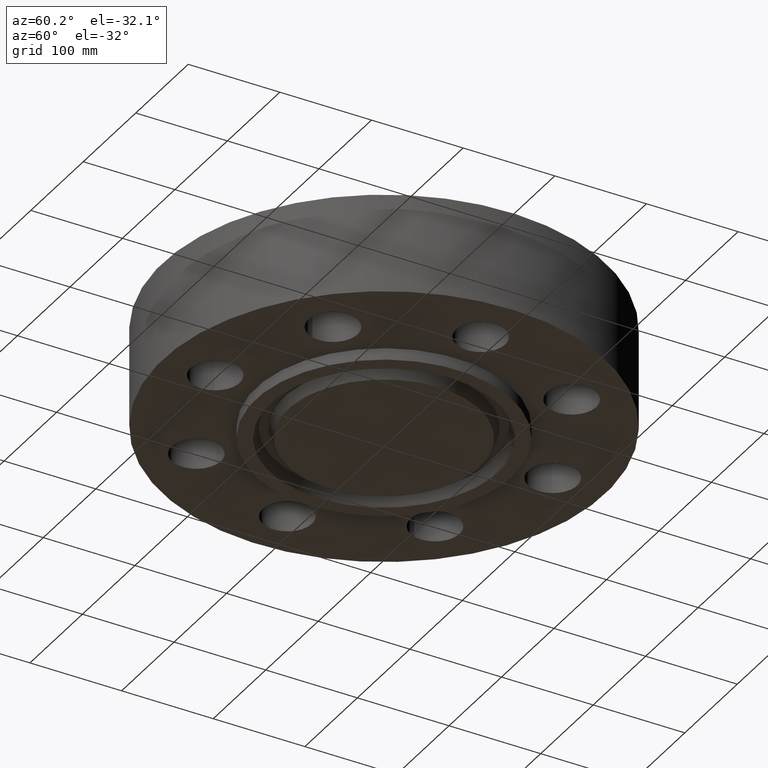
[diagram: clean part render]
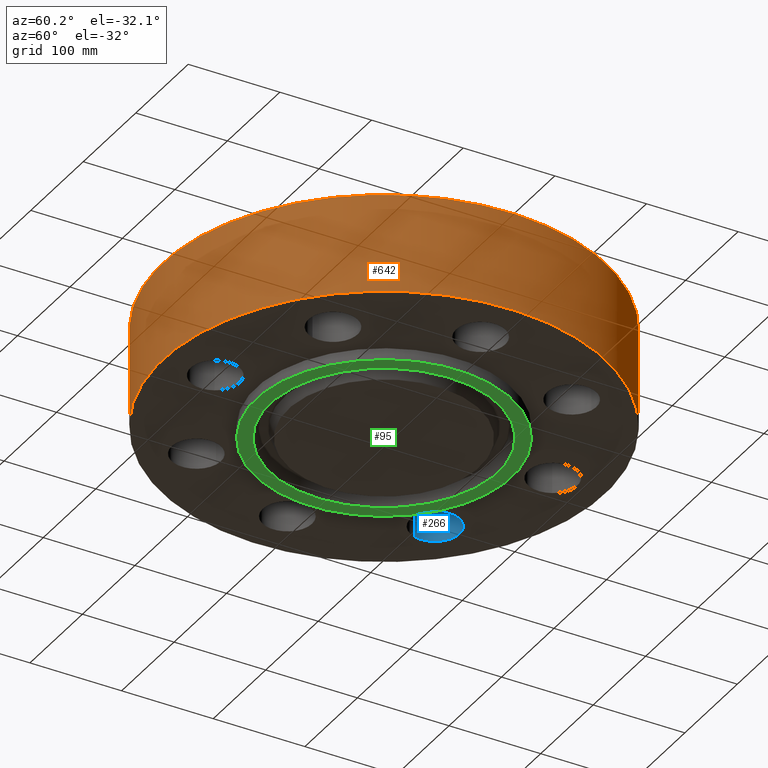
[diagram: same view with three faces highlighted in distinct colors, each labeled with its STEP entity id]
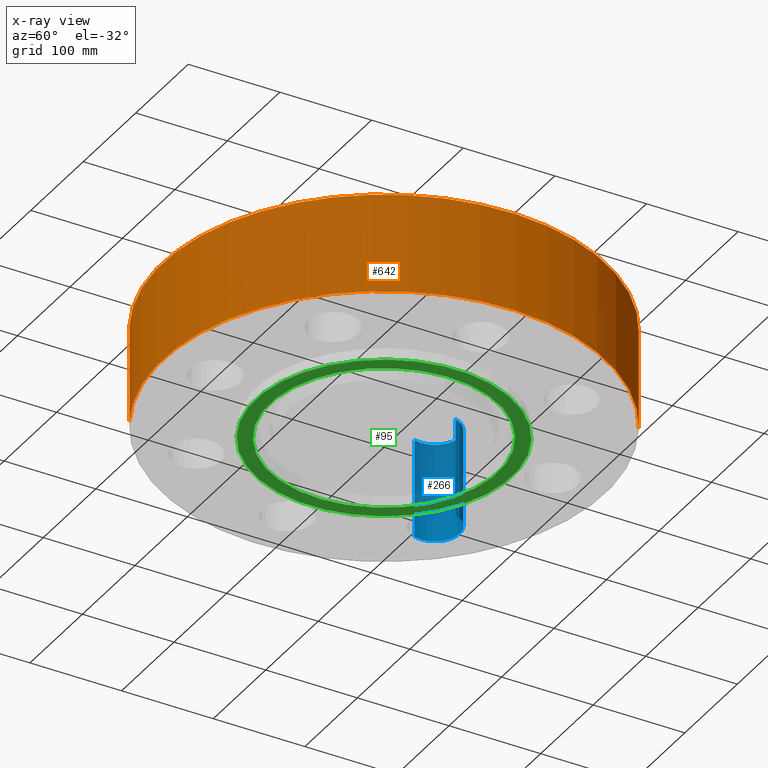
[diagram: x-ray of the same camera — body ghosted, the three highlighted faces saturated]
A machine part, auxiliary view with three faces highlighted in distinct colors.
The next image is the same camera in x-ray (body ghosted, the three faces saturated) — at least one of them is partly hidden behind the body in this view.
Their STEP definitions:

[orange] entity #642 — the highlighted cylindrical surface (partial cylindrical patch) has radius 241.3 mm, axis along (0, 0, -1).
#511=AXIS2_PLACEMENT_3D('Circle Axis2P3D',#509,#510,$) ;
#615=AXIS2_PLACEMENT_3D('Cylinder Axis2P3D',#612,#613,#614) ;
#626=AXIS2_PLACEMENT_3D('Circle Axis2P3D',#624,#625,$) ;
#504=CARTESIAN_POINT('Vertex',(-4.55454261676,-8.33703433799,8.39223703654E-016)) ;
#506=CARTESIAN_POINT('Vertex',(4.55454261676,8.33703433799,8.39223703654E-016)) ;
#509=CARTESIAN_POINT('Axis2P3D Location',(0.,0.,0.)) ;
#612=CARTESIAN_POINT('Axis2P3D Location',(0.,0.,1.87500000001)) ;
#617=CARTESIAN_POINT('Line Origine',(4.55454261676,8.33703433799,2.12500000001)) ;
#621=CARTESIAN_POINT('Vertex',(4.55454261676,8.33703433799,4.25000000002)) ;
#624=CARTESIAN_POINT('Axis2P3D Location',(0.,0.,4.25000000002)) ;
#628=CARTESIAN_POINT('Vertex',(-4.55454261676,-8.33703433799,4.25000000002)) ;
#631=CARTESIAN_POINT('Line Origine',(-4.55454261676,-8.33703433799,2.12500000001)) ;
#510=DIRECTION('Axis2P3D Direction',(0.,0.,-0.0393700787402)) ;
#613=DIRECTION('Axis2P3D Direction',(0.,0.,-0.0393700787402)) ;
#614=DIRECTION('Axis2P3D XDirection',(-0.0188750212049,-0.0345504945626,0.)) ;
#618=DIRECTION('Vector Direction',(0.,0.,-0.0393700787402)) ;
#625=DIRECTION('Axis2P3D Direction',(0.,0.,-0.0393700787402)) ;
#632=DIRECTION('Vector Direction',(0.,0.,-0.0393700787402)) ;
#619=VECTOR('Line Direction',#618,0.0393700787402) ;
#633=VECTOR('Line Direction',#632,0.0393700787402) ;
#637=ORIENTED_EDGE('',*,*,#513,.F.) ;
#638=ORIENTED_EDGE('',*,*,#623,.T.) ;
#639=ORIENTED_EDGE('',*,*,#630,.T.) ;
#640=ORIENTED_EDGE('',*,*,#635,.F.) ;
#642=ADVANCED_FACE('PartBody',(#641),#616,.T.) ;
#512=CIRCLE('generated circle',#511,9.50000000004) ;
#627=CIRCLE('generated circle',#626,9.50000000004) ;
#616=CYLINDRICAL_SURFACE('generated cylinder',#615,9.50000000004) ;
#513=EDGE_CURVE('',#507,#505,#512,.T.) ;
#623=EDGE_CURVE('',#507,#622,#620,.F.) ;
#630=EDGE_CURVE('',#622,#629,#627,.T.) ;
#635=EDGE_CURVE('',#505,#629,#634,.F.) ;
#636=EDGE_LOOP('',(#637,#638,#639,#640)) ;
#641=FACE_OUTER_BOUND('',#636,.T.) ;
#620=LINE('Line',#617,#619) ;
#634=LINE('Line',#631,#633) ;
#505=VERTEX_POINT('',#504) ;
#507=VERTEX_POINT('',#506) ;
#622=VERTEX_POINT('',#621) ;
#629=VERTEX_POINT('',#628) ;

[blue] entity #266 — the highlighted cylindrical surface (edge-blend (fillet) strip) has radius 26.924 mm, axis along (0, 0, -1).
#213=AXIS2_PLACEMENT_3D('Cylinder Axis2P3D',#210,#211,#212) ;
#252=AXIS2_PLACEMENT_3D('Circle Axis2P3D',#250,#251,$) ;
#257=AXIS2_PLACEMENT_3D('Circle Axis2P3D',#255,#256,$) ;
#210=CARTESIAN_POINT('Axis2P3D Location',(-5.12652416362,5.12652416362,4.24606299214)) ;
#215=CARTESIAN_POINT('Line Origine',(-4.10940155584,5.42495606664,2.12500000001)) ;
#219=CARTESIAN_POINT('Vertex',(-4.10940155584,5.42495606664,0.)) ;
#221=CARTESIAN_POINT('Vertex',(-4.10940155584,5.42495606664,4.25000000002)) ;
#228=CARTESIAN_POINT('Vertex',(-6.14364677141,4.82809226061,0.)) ;
#231=CARTESIAN_POINT('Line Origine',(-6.14364677141,4.82809226061,2.12500000001)) ;
#235=CARTESIAN_POINT('Vertex',(-6.14364677141,4.82809226061,4.25000000002)) ;
#250=CARTESIAN_POINT('Axis2P3D Location',(-5.12652416362,5.12652416362,0.)) ;
#255=CARTESIAN_POINT('Axis2P3D Location',(-5.12652416362,5.12652416362,4.25000000002)) ;
#211=DIRECTION('Axis2P3D Direction',(0.,0.,-0.0393700787402)) ;
#212=DIRECTION('Axis2P3D XDirection',(-0.0377775444876,-0.0110842335096,-0.)) ;
#216=DIRECTION('Vector Direction',(0.,0.,-0.0393700787402)) ;
#232=DIRECTION('Vector Direction',(0.,0.,-0.0393700787402)) ;
#251=DIRECTION('Axis2P3D Direction',(0.,0.,-0.0393700787402)) ;
#256=DIRECTION('Axis2P3D Direction',(0.,0.,-0.0393700787402)) ;
#217=VECTOR('Line Direction',#216,0.0393700787402) ;
#233=VECTOR('Line Direction',#232,0.0393700787402) ;
#261=ORIENTED_EDGE('',*,*,#237,.F.) ;
#262=ORIENTED_EDGE('',*,*,#254,.T.) ;
#263=ORIENTED_EDGE('',*,*,#223,.T.) ;
#264=ORIENTED_EDGE('',*,*,#259,.F.) ;
#266=ADVANCED_FACE('PartBody',(#265),#214,.F.) ;
#253=CIRCLE('generated circle',#252,1.06) ;
#258=CIRCLE('generated circle',#257,1.06) ;
#214=CYLINDRICAL_SURFACE('generated cylinder',#213,1.06) ;
#223=EDGE_CURVE('',#220,#222,#218,.F.) ;
#237=EDGE_CURVE('',#229,#236,#234,.F.) ;
#254=EDGE_CURVE('',#229,#220,#253,.T.) ;
#259=EDGE_CURVE('',#236,#222,#258,.T.) ;
#260=EDGE_LOOP('',(#261,#262,#263,#264)) ;
#265=FACE_OUTER_BOUND('',#260,.T.) ;
#218=LINE('Line',#215,#217) ;
#234=LINE('Line',#231,#233) ;
#220=VERTEX_POINT('',#219) ;
#222=VERTEX_POINT('',#221) ;
#229=VERTEX_POINT('',#228) ;
#236=VERTEX_POINT('',#235) ;

[green] entity #95 — the highlighted planar face has unit normal (0, 0, -1).
#38=AXIS2_PLACEMENT_3D('Plane Axis2P3D',#35,#36,#37) ;
#61=AXIS2_PLACEMENT_3D('Circle Axis2P3D',#59,#60,$) ;
#70=AXIS2_PLACEMENT_3D('Circle Axis2P3D',#68,#69,$) ;
#79=AXIS2_PLACEMENT_3D('Circle Axis2P3D',#77,#78,$) ;
#88=AXIS2_PLACEMENT_3D('Circle Axis2P3D',#86,#87,$) ;
#35=CARTESIAN_POINT('Axis2P3D Location',(0.,0.,-0.500000000002)) ;
#59=CARTESIAN_POINT('Axis2P3D Location',(0.,0.,-0.500000000002)) ;
#63=CARTESIAN_POINT('Vertex',(2.63684046233,4.82670409042,-0.500000000002)) ;
#65=CARTESIAN_POINT('Vertex',(-2.63684046233,-4.82670409042,-0.500000000002)) ;
#68=CARTESIAN_POINT('Axis2P3D Location',(0.,0.,-0.500000000002)) ;
#77=CARTESIAN_POINT('Axis2P3D Location',(1.1189649382E-015,2.23792987641E-015,-0.500000000002)) ;
#81=CARTESIAN_POINT('Vertex',(2.34463059655,-4.29181751894,-0.500000000002)) ;
#83=CARTESIAN_POINT('Vertex',(-2.34463059655,4.29181751894,-0.500000000002)) ;
#86=CARTESIAN_POINT('Axis2P3D Location',(4.19611851827E-016,1.1189649382E-015,-0.500000000002)) ;
#36=DIRECTION('Axis2P3D Direction',(0.,0.,-0.0393700787402)) ;
#37=DIRECTION('Axis2P3D XDirection',(0.0393700787402,0.,0.)) ;
#60=DIRECTION('Axis2P3D Direction',(0.,0.,-0.0393700787402)) ;
#69=DIRECTION('Axis2P3D Direction',(0.,0.,-0.0393700787402)) ;
#78=DIRECTION('Axis2P3D Direction',(0.,0.,-0.0393700787402)) ;
#87=DIRECTION('Axis2P3D Direction',(0.,0.,-0.0393700787402)) ;
#74=ORIENTED_EDGE('',*,*,#67,.T.) ;
#75=ORIENTED_EDGE('',*,*,#72,.T.) ;
#92=ORIENTED_EDGE('',*,*,#85,.F.) ;
#93=ORIENTED_EDGE('',*,*,#90,.F.) ;
#94=FACE_BOUND('',#91,.T.) ;
#95=ADVANCED_FACE('PartBody',(#76,#94),#39,.T.) ;
#62=CIRCLE('generated circle',#61,5.50000000002) ;
#71=CIRCLE('generated circle',#70,5.50000000002) ;
#80=CIRCLE('generated circle',#79,4.89050000002) ;
#89=CIRCLE('generated circle',#88,4.89050000002) ;
#67=EDGE_CURVE('',#64,#66,#62,.T.) ;
#72=EDGE_CURVE('',#66,#64,#71,.T.) ;
#85=EDGE_CURVE('',#82,#84,#80,.T.) ;
#90=EDGE_CURVE('',#84,#82,#89,.T.) ;
#73=EDGE_LOOP('',(#74,#75)) ;
#91=EDGE_LOOP('',(#92,#93)) ;
#76=FACE_OUTER_BOUND('',#73,.T.) ;
#39=PLANE('',#38) ;
#64=VERTEX_POINT('',#63) ;
#66=VERTEX_POINT('',#65) ;
#82=VERTEX_POINT('',#81) ;
#84=VERTEX_POINT('',#83) ;